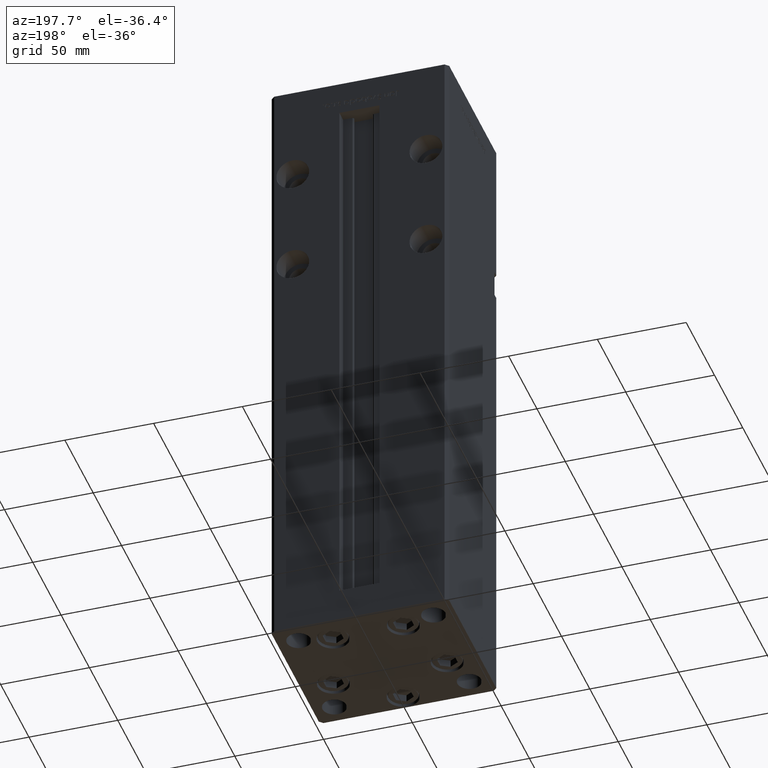
[diagram: clean part render]
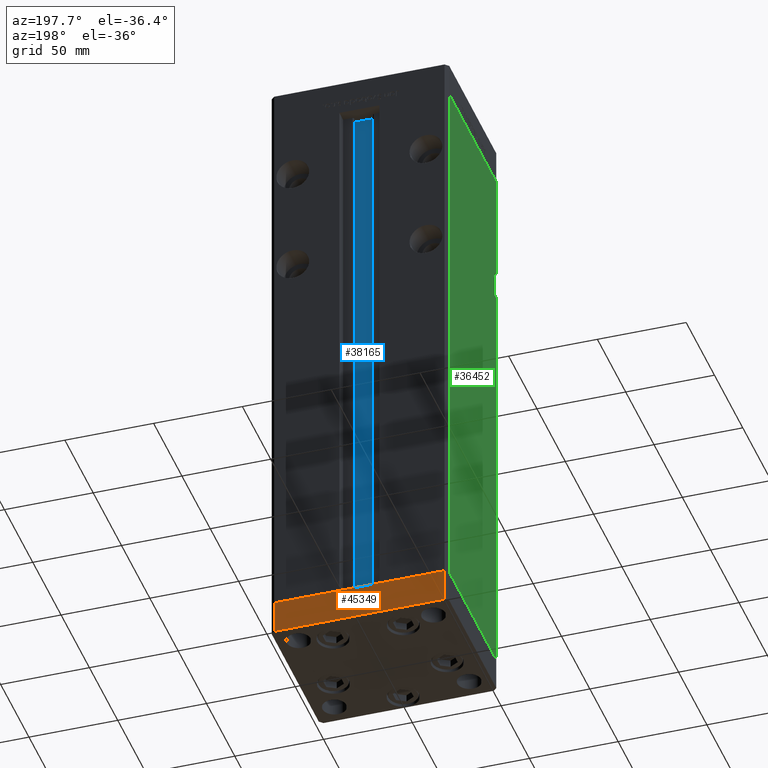
[diagram: same view with three faces highlighted in distinct colors, each labeled with its STEP entity id]
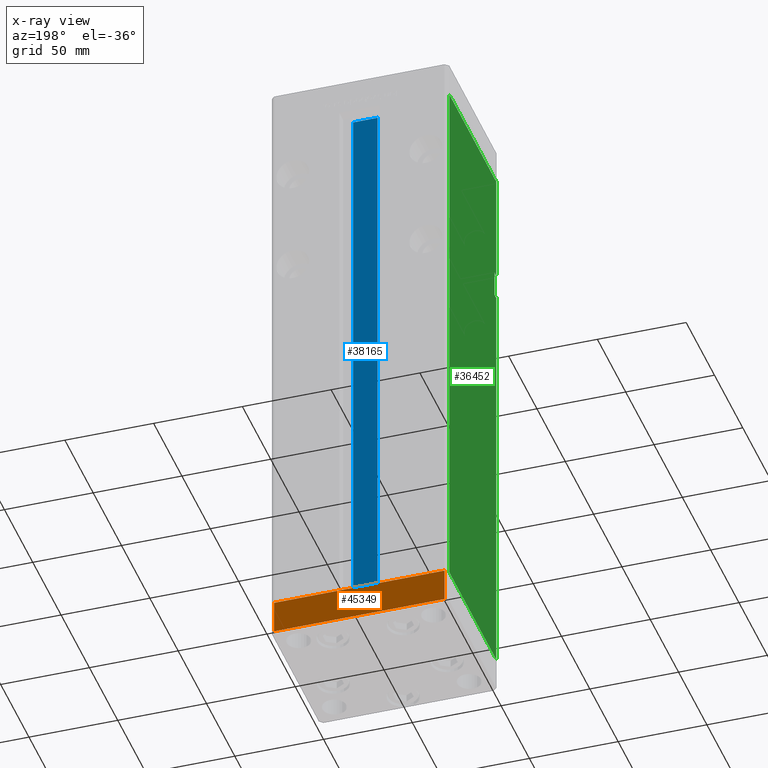
[diagram: x-ray of the same camera — body ghosted, the three highlighted faces saturated]
A machine part, auxiliary view with three faces highlighted in distinct colors.
The next image is the same camera in x-ray (body ghosted, the three faces saturated) — at least one of them is partly hidden behind the body in this view.
Their STEP definitions:

[orange] entity #45349 — the highlighted planar face has unit normal (-0, 1, 0).
#670 = LINE ( 'NONE', #24861, #44776 ) ;
#3122 = DIRECTION ( 'NONE',  ( 0.000000000000000000, 0.000000000000000000, 1.000000000000000000 ) ) ;
#4407 = FACE_OUTER_BOUND ( 'NONE', #24734, .T. ) ;
#4521 = EDGE_CURVE ( 'NONE', #30357, #50621, #29967, .T. ) ;
#4602 = CARTESIAN_POINT ( 'NONE',  ( 47.99999999999990763, 43.50000000000000000, -19.00000000000000000 ) ) ;
#5123 = LINE ( 'NONE', #4602, #47356 ) ;
#8622 = ORIENTED_EDGE ( 'NONE', *, *, #42494, .T. ) ;
#9138 = DIRECTION ( 'NONE',  ( -1.000000000000000000, -3.614007241618350743E-16, 0.000000000000000000 ) ) ;
#9511 = DIRECTION ( 'NONE',  ( -1.000000000000000000, -3.614007241618350743E-16, 0.000000000000000000 ) ) ;
#11936 = CARTESIAN_POINT ( 'NONE',  ( -48.00000000000000711, 43.49999999999996447, -19.00000000000000000 ) ) ;
#12818 = VECTOR ( 'NONE', #3122, 1000.000000000000000 ) ;
#12891 = AXIS2_PLACEMENT_3D ( 'NONE', #48766, #45270, #28608 ) ;
#15950 = CARTESIAN_POINT ( 'NONE',  ( 47.99999999999990763, 43.50000000000000000, 0.000000000000000000 ) ) ;
#18878 = ORIENTED_EDGE ( 'NONE', *, *, #51610, .F. ) ;
#21620 = VERTEX_POINT ( 'NONE', #41232 ) ;
#22273 = VECTOR ( 'NONE', #9511, 1000.000000000000000 ) ;
#23170 = ORIENTED_EDGE ( 'NONE', *, *, #47687, .T. ) ;
#24734 = EDGE_LOOP ( 'NONE', ( #29551, #18878, #23170, #8622 ) ) ;
#24861 = CARTESIAN_POINT ( 'NONE',  ( 47.99999999999990763, 43.50000000000000000, -19.00000000000000000 ) ) ;
#28608 = DIRECTION ( 'NONE',  ( -1.000000000000000000, -3.614007241618350743E-16, 0.000000000000000000 ) ) ;
#29551 = ORIENTED_EDGE ( 'NONE', *, *, #4521, .F. ) ;
#29967 = LINE ( 'NONE', #30238, #22273 ) ;
#30238 = CARTESIAN_POINT ( 'NONE',  ( 47.99999999999990763, 43.50000000000000000, 0.000000000000000000 ) ) ;
#30357 = VERTEX_POINT ( 'NONE', #15950 ) ;
#32902 = PLANE ( 'NONE',  #12891 ) ;
#37665 = VERTEX_POINT ( 'NONE', #48701 ) ;
#37755 = DIRECTION ( 'NONE',  ( 0.000000000000000000, 0.000000000000000000, 1.000000000000000000 ) ) ;
#39625 = CARTESIAN_POINT ( 'NONE',  ( -48.00000000000000711, 43.49999999999996447, 0.000000000000000000 ) ) ;
#41232 = CARTESIAN_POINT ( 'NONE',  ( 47.99999999999990763, 43.50000000000000000, -19.00000000000000000 ) ) ;
#42494 = EDGE_CURVE ( 'NONE', #37665, #50621, #48787, .T. ) ;
#44776 = VECTOR ( 'NONE', #37755, 1000.000000000000000 ) ;
#45270 = DIRECTION ( 'NONE',  ( -3.614007241618350743E-16, 1.000000000000000000, 0.000000000000000000 ) ) ;
#45349 = ADVANCED_FACE ( 'NONE', ( #4407 ), #32902, .T. ) ;
#47356 = VECTOR ( 'NONE', #9138, 1000.000000000000000 ) ;
#47687 = EDGE_CURVE ( 'NONE', #21620, #37665, #5123, .T. ) ;
#48701 = CARTESIAN_POINT ( 'NONE',  ( -48.00000000000000711, 43.49999999999996447, -19.00000000000000000 ) ) ;
#48766 = CARTESIAN_POINT ( 'NONE',  ( 47.99999999999990763, 43.50000000000000000, -19.00000000000000000 ) ) ;
#48787 = LINE ( 'NONE', #11936, #12818 ) ;
#50621 = VERTEX_POINT ( 'NONE', #39625 ) ;
#51610 = EDGE_CURVE ( 'NONE', #21620, #30357, #670, .T. ) ;

[blue] entity #38165 — the highlighted planar face has unit normal (0, -1, 0).
#3113 = ORIENTED_EDGE ( 'NONE', *, *, #29108, .T. ) ;
#3524 = VECTOR ( 'NONE', #29880, 1000.000000000000000 ) ;
#4344 = ORIENTED_EDGE ( 'NONE', *, *, #39853, .F. ) ;
#4729 = DIRECTION ( 'NONE',  ( -0.000000000000000000, -0.000000000000000000, 1.000000000000000000 ) ) ;
#5522 = LINE ( 'NONE', #38057, #21280 ) ;
#5702 = VERTEX_POINT ( 'NONE', #34476 ) ;
#6657 = CARTESIAN_POINT ( 'NONE',  ( 6.876153656360465050, 32.99999999999986500, 318.5000000000000000 ) ) ;
#6928 = PLANE ( 'NONE',  #35893 ) ;
#8119 = EDGE_CURVE ( 'NONE', #35658, #50288, #48528, .T. ) ;
#13910 = ORIENTED_EDGE ( 'NONE', *, *, #8119, .F. ) ;
#14159 = CARTESIAN_POINT ( 'NONE',  ( -6.876153656360465050, 32.99999999999986500, 0.000000000000000000 ) ) ;
#16701 = CARTESIAN_POINT ( 'NONE',  ( 6.876153656360465050, 32.99999999999986500, 0.000000000000000000 ) ) ;
#19704 = LINE ( 'NONE', #44186, #22197 ) ;
#20098 = CARTESIAN_POINT ( 'NONE',  ( -6.876153656360465050, 32.99999999999986500, 0.000000000000000000 ) ) ;
#21221 = VERTEX_POINT ( 'NONE', #6657 ) ;
#21280 = VECTOR ( 'NONE', #4729, 1000.000000000000000 ) ;
#22197 = VECTOR ( 'NONE', #47415, 1000.000000000000000 ) ;
#22763 = LINE ( 'NONE', #14159, #47753 ) ;
#27090 = DIRECTION ( 'NONE',  ( 0.000000000000000000, 0.000000000000000000, -1.000000000000000000 ) ) ;
#27894 = FACE_OUTER_BOUND ( 'NONE', #34431, .T. ) ;
#29108 = EDGE_CURVE ( 'NONE', #35658, #5702, #22763, .T. ) ;
#29880 = DIRECTION ( 'NONE',  ( 1.000000000000000000, -0.000000000000000000, -0.000000000000000000 ) ) ;
#33699 = EDGE_CURVE ( 'NONE', #50288, #21221, #5522, .T. ) ;
#34431 = EDGE_LOOP ( 'NONE', ( #41511, #13910, #3113, #4344 ) ) ;
#34476 = CARTESIAN_POINT ( 'NONE',  ( -6.876153656360465050, 32.99999999999986500, 318.5000000000000000 ) ) ;
#35658 = VERTEX_POINT ( 'NONE', #20098 ) ;
#35893 = AXIS2_PLACEMENT_3D ( 'NONE', #44554, #40000, #27090 ) ;
#38057 = CARTESIAN_POINT ( 'NONE',  ( 6.876153656360465050, 32.99999999999986500, 0.000000000000000000 ) ) ;
#38165 = ADVANCED_FACE ( 'NONE', ( #27894 ), #6928, .F. ) ;
#39853 = EDGE_CURVE ( 'NONE', #21221, #5702, #19704, .T. ) ;
#40000 = DIRECTION ( 'NONE',  ( 0.000000000000000000, -1.000000000000000000, -0.000000000000000000 ) ) ;
#41511 = ORIENTED_EDGE ( 'NONE', *, *, #33699, .F. ) ;
#42408 = CARTESIAN_POINT ( 'NONE',  ( 6.876153656360465050, 32.99999999999986500, 0.000000000000000000 ) ) ;
#44186 = CARTESIAN_POINT ( 'NONE',  ( 0.000000000000000000, 32.99999999999986500, 318.5000000000000000 ) ) ;
#44554 = CARTESIAN_POINT ( 'NONE',  ( 6.876153656360465050, 32.99999999999986500, 0.000000000000000000 ) ) ;
#46965 = DIRECTION ( 'NONE',  ( -0.000000000000000000, -0.000000000000000000, 1.000000000000000000 ) ) ;
#47415 = DIRECTION ( 'NONE',  ( -1.000000000000000000, 0.000000000000000000, 0.000000000000000000 ) ) ;
#47753 = VECTOR ( 'NONE', #46965, 1000.000000000000000 ) ;
#48528 = LINE ( 'NONE', #16701, #3524 ) ;
#50288 = VERTEX_POINT ( 'NONE', #42408 ) ;

[green] entity #36452 — the highlighted planar face has unit normal (1, 0, 0).
#1998 = DIRECTION ( 'NONE',  ( -0.000000000000000000, -0.000000000000000000, -1.000000000000000000 ) ) ;
#2285 = EDGE_CURVE ( 'NONE', #42732, #52550, #6288, .T. ) ;
#3059 = CARTESIAN_POINT ( 'NONE',  ( -50.00000000000001421, 41.49999999999999289, 318.5000000000000000 ) ) ;
#4218 = VECTOR ( 'NONE', #37876, 1000.000000000000000 ) ;
#4875 = VERTEX_POINT ( 'NONE', #23102 ) ;
#6288 = LINE ( 'NONE', #3059, #23133 ) ;
#6768 = VERTEX_POINT ( 'NONE', #37992 ) ;
#8905 = VECTOR ( 'NONE', #26858, 1000.000000000000000 ) ;
#9072 = ORIENTED_EDGE ( 'NONE', *, *, #33536, .T. ) ;
#9359 = CARTESIAN_POINT ( 'NONE',  ( -50.00000000000001421, 41.49999999999999289, 318.5000000000000000 ) ) ;
#9645 = LINE ( 'NONE', #22816, #49860 ) ;
#10114 = VECTOR ( 'NONE', #40241, 1000.000000000000000 ) ;
#10302 = DIRECTION ( 'NONE',  ( 3.344045254895050973E-16, -1.000000000000000000, 0.000000000000000000 ) ) ;
#10378 = LINE ( 'NONE', #26792, #11111 ) ;
#10442 = CARTESIAN_POINT ( 'NONE',  ( -49.99999999999998579, -38.50000000000000000, 241.0000000000000000 ) ) ;
#11111 = VECTOR ( 'NONE', #46698, 1000.000000000000000 ) ;
#12866 = ORIENTED_EDGE ( 'NONE', *, *, #14210, .T. ) ;
#14210 = EDGE_CURVE ( 'NONE', #52550, #44269, #42849, .T. ) ;
#14366 = AXIS2_PLACEMENT_3D ( 'NONE', #38424, #17707, #50503 ) ;
#15243 = CARTESIAN_POINT ( 'NONE',  ( -49.99999999999998579, -41.49999999999999289, 318.5000000000000000 ) ) ;
#16260 = ORIENTED_EDGE ( 'NONE', *, *, #51134, .F. ) ;
#17087 = VERTEX_POINT ( 'NONE', #43626 ) ;
#17507 = VERTEX_POINT ( 'NONE', #22998 ) ;
#17707 = DIRECTION ( 'NONE',  ( 1.000000000000000000, 3.344045254895050480E-16, -0.000000000000000000 ) ) ;
#18107 = CARTESIAN_POINT ( 'NONE',  ( -50.00000000000001421, 41.49999999999999289, 0.000000000000000000 ) ) ;
#18162 = VECTOR ( 'NONE', #10302, 1000.000000000000000 ) ;
#19027 = DIRECTION ( 'NONE',  ( -0.000000000000000000, -0.000000000000000000, -1.000000000000000000 ) ) ;
#19815 = EDGE_CURVE ( 'NONE', #17507, #17087, #35996, .T. ) ;
#22040 = EDGE_CURVE ( 'NONE', #4875, #6768, #52620, .T. ) ;
#22816 = CARTESIAN_POINT ( 'NONE',  ( -49.99999999999998579, -38.50000000000000000, 256.0000000000000000 ) ) ;
#22998 = CARTESIAN_POINT ( 'NONE',  ( -49.99999999999998579, -38.50000000000000000, 241.0000000000000000 ) ) ;
#23102 = CARTESIAN_POINT ( 'NONE',  ( -49.99999999999998579, -41.49999999999999289, 318.5000000000000000 ) ) ;
#23133 = VECTOR ( 'NONE', #1998, 1000.000000000000000 ) ;
#23231 = CARTESIAN_POINT ( 'NONE',  ( -50.00000000000001421, 41.49999999999999289, 0.000000000000000000 ) ) ;
#26088 = ORIENTED_EDGE ( 'NONE', *, *, #19815, .F. ) ;
#26792 = CARTESIAN_POINT ( 'NONE',  ( -49.99999999999998579, -41.49999999999999289, 318.5000000000000000 ) ) ;
#26858 = DIRECTION ( 'NONE',  ( -0.000000000000000000, -1.000000000000000000, -0.000000000000000000 ) ) ;
#28929 = LINE ( 'NONE', #49353, #10114 ) ;
#29003 = ORIENTED_EDGE ( 'NONE', *, *, #2285, .T. ) ;
#31615 = ORIENTED_EDGE ( 'NONE', *, *, #43124, .F. ) ;
#32810 = VERTEX_POINT ( 'NONE', #46111 ) ;
#33536 = EDGE_CURVE ( 'NONE', #32810, #6768, #28929, .T. ) ;
#33573 = LINE ( 'NONE', #9359, #4218 ) ;
#33851 = FACE_OUTER_BOUND ( 'NONE', #49565, .T. ) ;
#35996 = LINE ( 'NONE', #10442, #8905 ) ;
#36452 = ADVANCED_FACE ( 'NONE', ( #33851 ), #38162, .F. ) ;
#37876 = DIRECTION ( 'NONE',  ( 3.344045254895050973E-16, -1.000000000000000000, 0.000000000000000000 ) ) ;
#37992 = CARTESIAN_POINT ( 'NONE',  ( -49.99999999999998579, -41.49999999999999289, 256.0000000000000000 ) ) ;
#38162 = PLANE ( 'NONE',  #14366 ) ;
#38424 = CARTESIAN_POINT ( 'NONE',  ( -50.00000000000001421, 41.49999999999999289, 318.5000000000000000 ) ) ;
#40241 = DIRECTION ( 'NONE',  ( -0.000000000000000000, -1.000000000000000000, -0.000000000000000000 ) ) ;
#41945 = EDGE_CURVE ( 'NONE', #42732, #4875, #33573, .T. ) ;
#42732 = VERTEX_POINT ( 'NONE', #48411 ) ;
#42849 = LINE ( 'NONE', #18107, #18162 ) ;
#42899 = ORIENTED_EDGE ( 'NONE', *, *, #41945, .F. ) ;
#43124 = EDGE_CURVE ( 'NONE', #17087, #44269, #10378, .T. ) ;
#43626 = CARTESIAN_POINT ( 'NONE',  ( -49.99999999999998579, -41.49999999999999289, 241.0000000000000000 ) ) ;
#44030 = ORIENTED_EDGE ( 'NONE', *, *, #22040, .F. ) ;
#44269 = VERTEX_POINT ( 'NONE', #52205 ) ;
#46111 = CARTESIAN_POINT ( 'NONE',  ( -49.99999999999998579, -38.50000000000000000, 256.0000000000000000 ) ) ;
#46698 = DIRECTION ( 'NONE',  ( -0.000000000000000000, -0.000000000000000000, -1.000000000000000000 ) ) ;
#47018 = DIRECTION ( 'NONE',  ( 0.000000000000000000, 0.000000000000000000, -1.000000000000000000 ) ) ;
#48411 = CARTESIAN_POINT ( 'NONE',  ( -50.00000000000001421, 41.49999999999999289, 318.5000000000000000 ) ) ;
#49353 = CARTESIAN_POINT ( 'NONE',  ( -49.99999999999998579, -38.50000000000000000, 256.0000000000000000 ) ) ;
#49565 = EDGE_LOOP ( 'NONE', ( #31615, #26088, #16260, #9072, #44030, #42899, #29003, #12866 ) ) ;
#49860 = VECTOR ( 'NONE', #47018, 1000.000000000000000 ) ;
#50159 = VECTOR ( 'NONE', #19027, 1000.000000000000000 ) ;
#50503 = DIRECTION ( 'NONE',  ( -3.344045254895050480E-16, 1.000000000000000000, 0.000000000000000000 ) ) ;
#51134 = EDGE_CURVE ( 'NONE', #32810, #17507, #9645, .T. ) ;
#52205 = CARTESIAN_POINT ( 'NONE',  ( -49.99999999999998579, -41.49999999999999289, 0.000000000000000000 ) ) ;
#52550 = VERTEX_POINT ( 'NONE', #23231 ) ;
#52620 = LINE ( 'NONE', #15243, #50159 ) ;